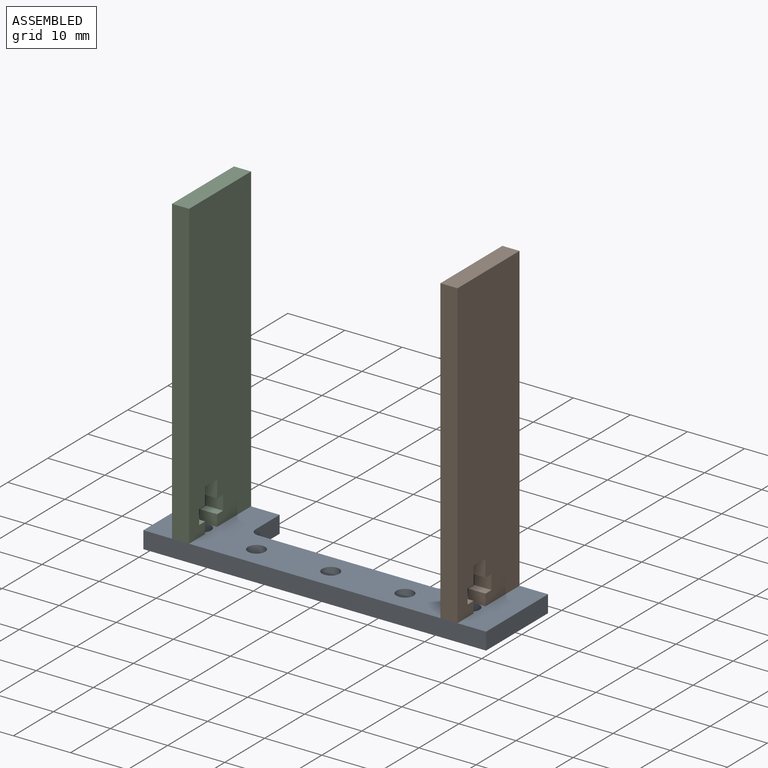
[diagram: assembled view]
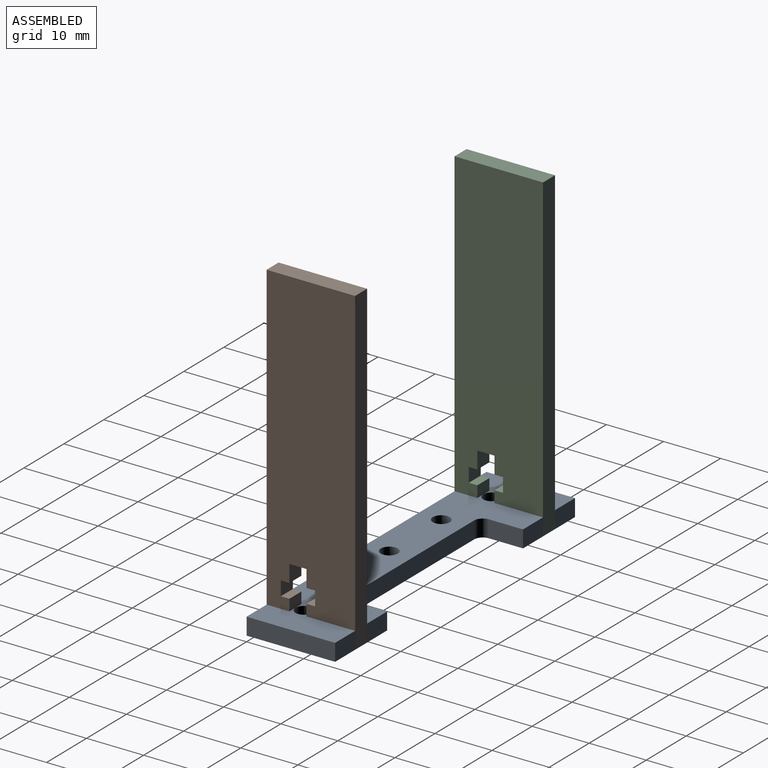
[diagram: assembled view, second angle]
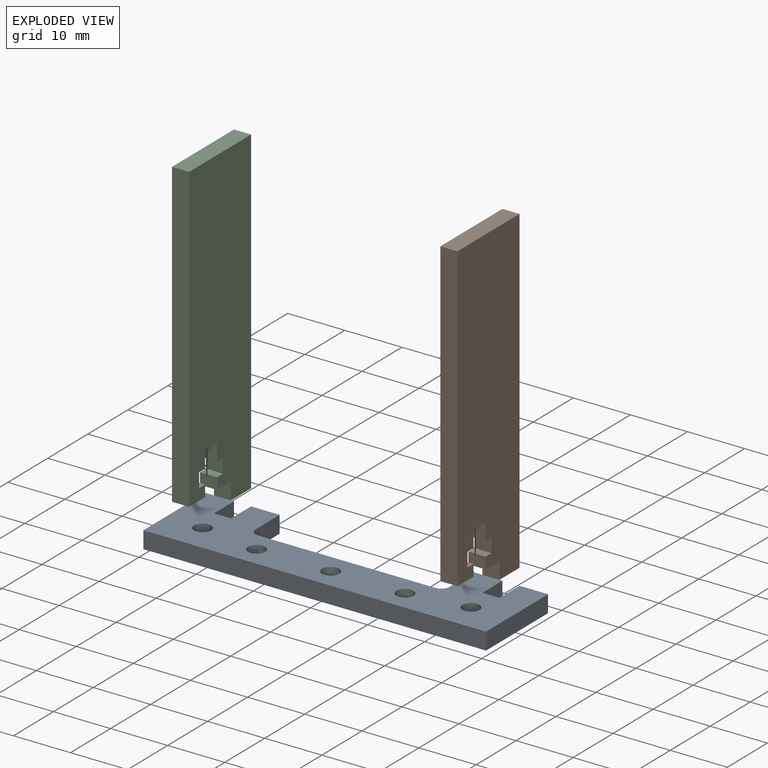
[diagram: exploded view]
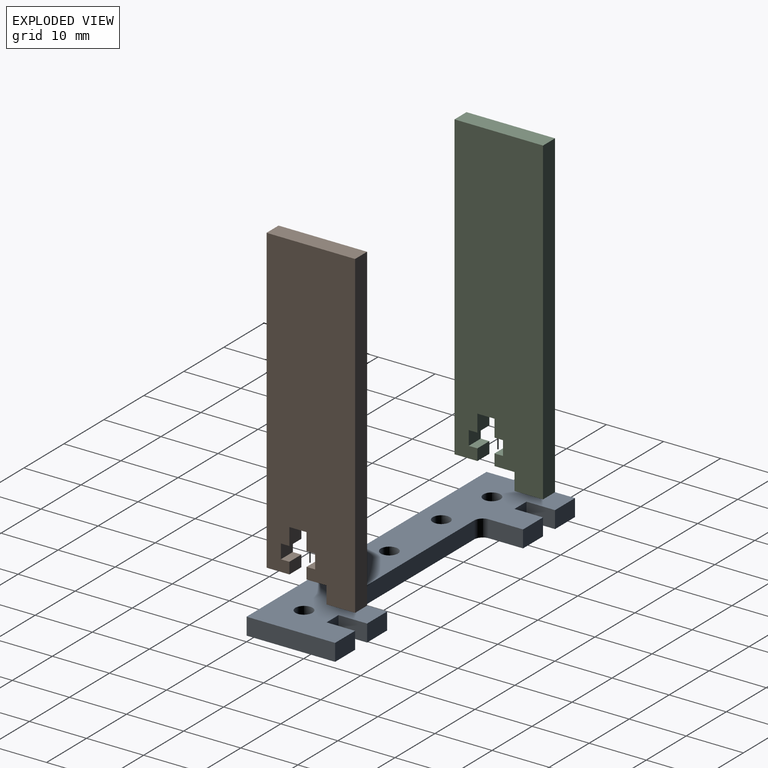
[diagram: exploded view, second angle]
ASSEMBLY  parts=3 mates=2
PART A: 25 faces, bbox 60x15.5x3 mm
  f0: plane 5x3mm, normal (0,1,0), area 15mm2, adj f1,f21,f23,f24
  f1: plane 15.5x3mm, normal (-1,0,0), area 46.5mm2, adj f0,f2,f23,f24
  f2: plane 60x3mm, normal (0,-1,0), area 180mm2, adj f1,f3,f23,f24
  f3: plane 15.5x3mm, normal (1,0,0), area 46.5mm2, adj f2,f4,f23,f24
  f4: plane 5x3mm, normal (0,1,0), area 15mm2, adj f3,f5,f23,f24
  f5: plane 5x3mm, normal (-1,0,0), area 15mm2, adj f4,f6,f23,f24
  f6: plane 3x3mm, normal (0,1,0), area 9mm2, adj f5,f7,f23,f24
  f7: plane 5x3mm, normal (1,0,0), area 15mm2, adj f6,f8,f23,f24
  f8: plane 5x3mm, normal (0,1,0), area 15mm2, adj f7,f9,f23,f24
  f9: plane 6x3mm, normal (-1,0,0), area 18mm2, adj f8,f10,f23,f24
  f10: cylinder r=1.5mm len=3mm, axis (0,0,-1), area 7.1mm2, adj f9,f11,f23,f24
  f11: plane 31x3mm, normal (0,1,0), area 93mm2, adj f10,f12,f23,f24
  f12: cylinder r=1.5mm len=3mm, axis (0,0,-1), area 7.1mm2, adj f11,f13,f23,f24
  f13: plane 6x3mm, normal (1,0,0), area 18mm2, adj f12,f14,f23,f24
  f14: plane 5x3mm, normal (0,1,0), area 15mm2, adj f13,f15,f23,f24
  f15: plane 5x3mm, normal (-1,0,0), area 15mm2, adj f14,f16,f23,f24
  f16: plane 3x3mm, normal (0,1,0), area 9mm2, adj f15,f21,f23,f24
  f17: cylinder r=1.5mm len=3mm, axis (0,0,-1), area 28.3mm2, adj f23,f24
  f18: cylinder r=1.5mm len=3mm, axis (0,0,-1), area 28.3mm2, adj f23,f24
  f19: cylinder r=1.5mm len=3mm, axis (0,0,-1), area 28.3mm2, adj f23,f24
  f20: cylinder r=1.5mm len=3mm, axis (0,0,-1), area 28.3mm2, adj f23,f24
  f21: plane 5x3mm, normal (1,0,0), area 15mm2, adj f0,f16,f23,f24
  f22: cylinder r=1.5mm len=3mm, axis (0,0,-1), area 28.3mm2, adj f23,f24
  f23: plane 60x15.5mm, normal (0,0,1), area 610.6mm2, adj f0,f1,f2,f3,f4,f5,f6,f7
  f24: plane 60x15.5mm, normal (0,0,-1), area 610.6mm2, adj f0,f1,f2,f3,f4,f5,f6,f7
PART B: 20 faces, bbox 15.5x56x3 mm
  f0: plane 3x1.5mm, normal (0,1,0), area 4.5mm2, adj f1,f17,f18,f19
  f1: plane 3x2mm, normal (-1,0,0), area 6mm2, adj f0,f2,f18,f19
  f2: plane 3.5x3mm, normal (0,-1,0), area 10.5mm2, adj f1,f3,f18,f19
  f3: plane 3x3mm, normal (-1,0,0), area 9mm2, adj f2,f4,f18,f19
  f4: plane 5x3mm, normal (0,-1,0), area 15mm2, adj f3,f5,f18,f19
  f5: plane 56x3mm, normal (1,0,0), area 168mm2, adj f4,f6,f18,f19
  f6: plane 15.5x3mm, normal (0,1,0), area 46.5mm2, adj f5,f7,f18,f19
  f7: plane 53x3mm, normal (-1,0,0), area 159mm2, adj f6,f8,f18,f19
  f8: plane 4x3mm, normal (0,-1,0), area 12mm2, adj f7,f9,f18,f19
  f9: plane 3x2mm, normal (1,0,0), area 6mm2, adj f8,f10,f18,f19
  f10: plane 3x1.5mm, normal (0,1,0), area 4.5mm2, adj f9,f11,f18,f19
  f11: plane 3x2.5mm, normal (1,0,0), area 7.5mm2, adj f10,f12,f18,f19
  f12: plane 3x1.5mm, normal (0,-1,0), area 4.5mm2, adj f11,f13,f18,f19
  f13: plane 3x3mm, normal (1,0,0), area 9mm2, adj f12,f14,f18,f19
  f14: plane 3x3mm, normal (0,-1,0), area 9mm2, adj f13,f15,f18,f19
  f15: plane 3x3mm, normal (-1,0,0), area 9mm2, adj f14,f16,f18,f19
  f16: plane 3x1.5mm, normal (0,-1,0), area 4.5mm2, adj f15,f17,f18,f19
  f17: plane 3x2.5mm, normal (-1,0,0), area 7.5mm2, adj f0,f16,f18,f19
  f18: plane 56x15.5mm, normal (0,0,1), area 806.5mm2, adj f0,f1,f2,f3,f4,f5,f6,f7
  f19: plane 56x15.5mm, normal (0,0,-1), area 806.5mm2, adj f0,f1,f2,f3,f4,f5,f6,f7
PART C: same geometry as B
PLACE A t=(20.5,5.87,27.36)mm
PLACE B rot(axis=(0.58,0.58,0.58),120deg) t=(42.5,0.37,30.36)mm
PLACE C rot(axis=(0.58,0.58,0.58),120deg) t=(-4.5,0.37,30.36)mm
MATE fastened C.f4 <-> A.f24  axis (0,0,-1) through (-1.5,15.87,27.36)mm
MATE fastened B.f4 <-> A.f24  axis (0,0,-1) through (45.5,15.87,27.36)mm
